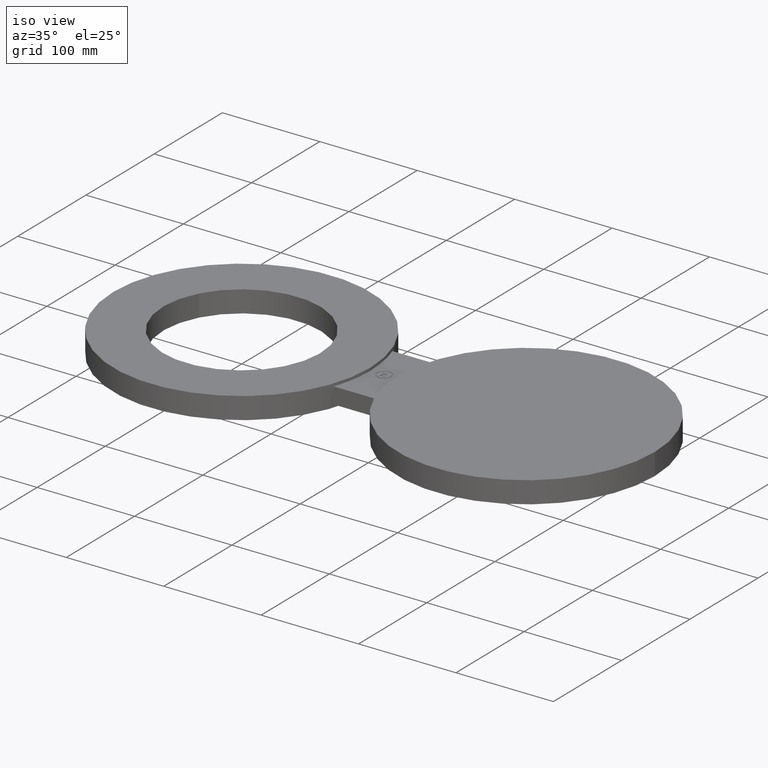
[diagram: clean part render]
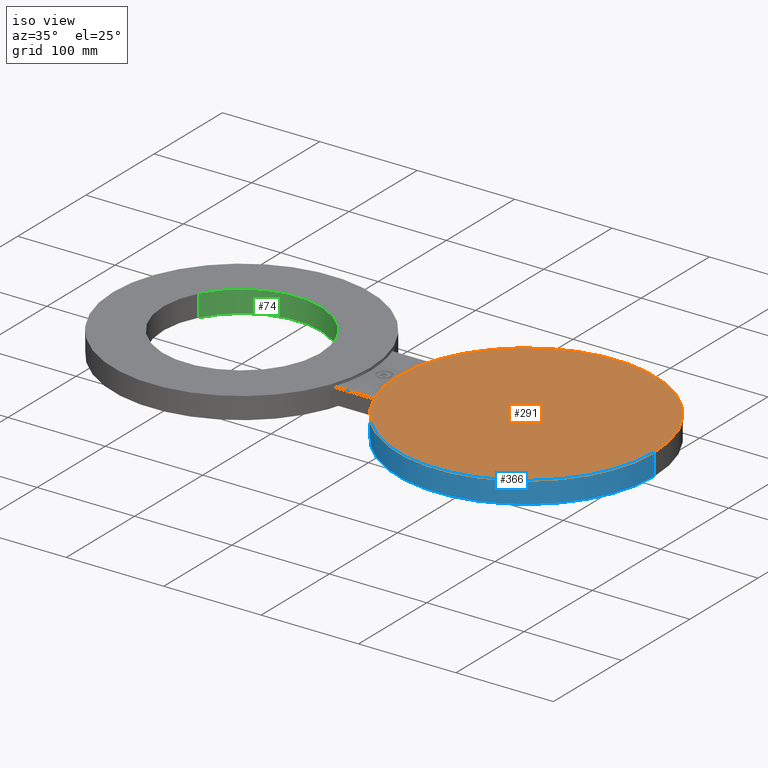
[diagram: same view with three faces highlighted in distinct colors, each labeled with its STEP entity id]
A machine part, iso view with three faces highlighted in distinct colors.
Their STEP definitions:

[orange] entity #291 — the highlighted planar face has unit normal (0, 0, 1).
#78=AXIS2_PLACEMENT_3D('Plane Axis2P3D',#75,#76,#77) ;
#275=AXIS2_PLACEMENT_3D('Circle Axis2P3D',#273,#274,$) ;
#284=AXIS2_PLACEMENT_3D('Circle Axis2P3D',#282,#283,$) ;
#75=CARTESIAN_POINT('Axis2P3D Location',(0.,0.,0.440000000002)) ;
#273=CARTESIAN_POINT('Axis2P3D Location',(11.5,1.40834381903E-015,0.440000000002)) ;
#277=CARTESIAN_POINT('Vertex',(6.31000000003,2.04393550779E-015,0.440000000002)) ;
#279=CARTESIAN_POINT('Vertex',(16.6900000001,1.37160441505E-016,0.440000000002)) ;
#282=CARTESIAN_POINT('Axis2P3D Location',(11.5,1.40834381903E-015,0.440000000002)) ;
#76=DIRECTION('Axis2P3D Direction',(0.,0.,0.0393700787402)) ;
#77=DIRECTION('Axis2P3D XDirection',(0.0393700787402,0.,0.)) ;
#274=DIRECTION('Axis2P3D Direction',(0.,0.,0.0393700787402)) ;
#283=DIRECTION('Axis2P3D Direction',(0.,0.,0.0393700787402)) ;
#288=ORIENTED_EDGE('',*,*,#281,.T.) ;
#289=ORIENTED_EDGE('',*,*,#286,.T.) ;
#291=ADVANCED_FACE('PartBody',(#290),#79,.T.) ;
#276=CIRCLE('generated circle',#275,5.19000000002) ;
#285=CIRCLE('generated circle',#284,5.19000000002) ;
#281=EDGE_CURVE('',#278,#280,#276,.T.) ;
#286=EDGE_CURVE('',#280,#278,#285,.T.) ;
#287=EDGE_LOOP('',(#288,#289)) ;
#290=FACE_OUTER_BOUND('',#287,.T.) ;
#79=PLANE('',#78) ;
#278=VERTEX_POINT('',#277) ;
#280=VERTEX_POINT('',#279) ;

[blue] entity #366 — the highlighted cylindrical surface (partial cylindrical patch) has radius 131.826 mm, axis along (0, 0, 1).
#265=AXIS2_PLACEMENT_3D('Circle Axis2P3D',#263,#264,$) ;
#275=AXIS2_PLACEMENT_3D('Circle Axis2P3D',#273,#274,$) ;
#295=AXIS2_PLACEMENT_3D('Cylinder Axis2P3D',#292,#293,#294) ;
#348=AXIS2_PLACEMENT_3D('Circle Axis2P3D',#346,#347,$) ;
#353=AXIS2_PLACEMENT_3D('Circle Axis2P3D',#351,#352,$) ;
#227=CARTESIAN_POINT('Vertex',(6.59286234147,-1.69000000001,-0.330000000001)) ;
#230=CARTESIAN_POINT('Line Origine',(6.59286234147,-1.69000000001,0.)) ;
#234=CARTESIAN_POINT('Vertex',(6.59286234147,-1.69000000001,0.330000000001)) ;
#258=CARTESIAN_POINT('Vertex',(16.6900000001,1.37160441505E-016,-0.440000000002)) ;
#260=CARTESIAN_POINT('Vertex',(6.31000000003,2.04393550779E-015,-0.440000000002)) ;
#263=CARTESIAN_POINT('Axis2P3D Location',(11.5,1.40834381903E-015,-0.440000000002)) ;
#273=CARTESIAN_POINT('Axis2P3D Location',(11.5,1.40834381903E-015,0.440000000002)) ;
#277=CARTESIAN_POINT('Vertex',(6.31000000003,2.04393550779E-015,0.440000000002)) ;
#279=CARTESIAN_POINT('Vertex',(16.6900000001,1.37160441505E-016,0.440000000002)) ;
#292=CARTESIAN_POINT('Axis2P3D Location',(11.5,1.40834381903E-015,0.)) ;
#297=CARTESIAN_POINT('Line Origine',(6.31000000003,3.31511888531E-015,0.)) ;
#301=CARTESIAN_POINT('Vertex',(6.31000000003,2.04393550779E-015,0.330000000001)) ;
#304=CARTESIAN_POINT('Line Origine',(16.6900000001,1.37160441505E-016,0.)) ;
#309=CARTESIAN_POINT('Line Origine',(6.31000000003,3.31511888531E-015,0.)) ;
#313=CARTESIAN_POINT('Vertex',(6.31000000003,2.04393550779E-015,-0.330000000001)) ;
#346=CARTESIAN_POINT('Axis2P3D Location',(11.5,1.40834381903E-015,0.330000000001)) ;
#351=CARTESIAN_POINT('Axis2P3D Location',(11.5,1.40834381903E-015,-0.330000000001)) ;
#231=DIRECTION('Vector Direction',(0.,0.,0.0393700787402)) ;
#264=DIRECTION('Axis2P3D Direction',(0.,0.,0.0393700787402)) ;
#274=DIRECTION('Axis2P3D Direction',(0.,0.,0.0393700787402)) ;
#293=DIRECTION('Axis2P3D Direction',(0.,0.,0.0393700787402)) ;
#294=DIRECTION('Axis2P3D XDirection',(-0.0393700787402,4.82144409113E-018,0.)) ;
#298=DIRECTION('Vector Direction',(0.,0.,0.0393700787402)) ;
#305=DIRECTION('Vector Direction',(0.,0.,0.0393700787402)) ;
#310=DIRECTION('Vector Direction',(0.,0.,0.0393700787402)) ;
#347=DIRECTION('Axis2P3D Direction',(0.,0.,0.0393700787402)) ;
#352=DIRECTION('Axis2P3D Direction',(0.,0.,0.0393700787402)) ;
#232=VECTOR('Line Direction',#231,0.0393700787402) ;
#299=VECTOR('Line Direction',#298,0.0393700787402) ;
#306=VECTOR('Line Direction',#305,0.0393700787402) ;
#311=VECTOR('Line Direction',#310,0.0393700787402) ;
#357=ORIENTED_EDGE('',*,*,#315,.F.) ;
#358=ORIENTED_EDGE('',*,*,#267,.T.) ;
#359=ORIENTED_EDGE('',*,*,#308,.T.) ;
#360=ORIENTED_EDGE('',*,*,#281,.F.) ;
#361=ORIENTED_EDGE('',*,*,#303,.F.) ;
#362=ORIENTED_EDGE('',*,*,#350,.T.) ;
#363=ORIENTED_EDGE('',*,*,#236,.F.) ;
#364=ORIENTED_EDGE('',*,*,#355,.F.) ;
#366=ADVANCED_FACE('PartBody',(#365),#296,.T.) ;
#266=CIRCLE('generated circle',#265,5.19000000002) ;
#276=CIRCLE('generated circle',#275,5.19000000002) ;
#349=CIRCLE('generated circle',#348,5.19000000002) ;
#354=CIRCLE('generated circle',#353,5.19000000002) ;
#296=CYLINDRICAL_SURFACE('generated cylinder',#295,5.19000000002) ;
#236=EDGE_CURVE('',#228,#235,#233,.T.) ;
#267=EDGE_CURVE('',#261,#259,#266,.T.) ;
#281=EDGE_CURVE('',#278,#280,#276,.T.) ;
#303=EDGE_CURVE('',#302,#278,#300,.T.) ;
#308=EDGE_CURVE('',#259,#280,#307,.T.) ;
#315=EDGE_CURVE('',#261,#314,#312,.T.) ;
#350=EDGE_CURVE('',#302,#235,#349,.T.) ;
#355=EDGE_CURVE('',#314,#228,#354,.T.) ;
#356=EDGE_LOOP('',(#357,#358,#359,#360,#361,#362,#363,#364)) ;
#365=FACE_OUTER_BOUND('',#356,.T.) ;
#233=LINE('Line',#230,#232) ;
#300=LINE('Line',#297,#299) ;
#307=LINE('Line',#304,#306) ;
#312=LINE('Line',#309,#311) ;
#228=VERTEX_POINT('',#227) ;
#235=VERTEX_POINT('',#234) ;
#259=VERTEX_POINT('',#258) ;
#261=VERTEX_POINT('',#260) ;
#278=VERTEX_POINT('',#277) ;
#280=VERTEX_POINT('',#279) ;
#302=VERTEX_POINT('',#301) ;
#314=VERTEX_POINT('',#313) ;

[green] entity #74 — the highlighted cylindrical surface (partial cylindrical patch) has radius 80.772 mm, axis along (0, -0, -1).
#38=AXIS2_PLACEMENT_3D('Cylinder Axis2P3D',#35,#36,#37) ;
#51=AXIS2_PLACEMENT_3D('Circle Axis2P3D',#49,#50,$) ;
#65=AXIS2_PLACEMENT_3D('Circle Axis2P3D',#63,#64,$) ;
#35=CARTESIAN_POINT('Axis2P3D Location',(8.52336574023E-017,-6.99353086378E-017,0.436062992128)) ;
#40=CARTESIAN_POINT('Line Origine',(-2.79071254682,1.52457321277,0.)) ;
#44=CARTESIAN_POINT('Vertex',(-2.79071254682,1.52457321277,-0.440000000002)) ;
#46=CARTESIAN_POINT('Vertex',(-2.79071254682,1.52457321277,0.440000000002)) ;
#49=CARTESIAN_POINT('Axis2P3D Location',(8.52336574023E-017,-6.99353086378E-017,-0.440000000002)) ;
#53=CARTESIAN_POINT('Vertex',(2.79071254682,-1.52457321277,-0.440000000002)) ;
#56=CARTESIAN_POINT('Line Origine',(2.79071254682,-1.52457321277,0.)) ;
#60=CARTESIAN_POINT('Vertex',(2.79071254682,-1.52457321277,0.440000000002)) ;
#63=CARTESIAN_POINT('Axis2P3D Location',(8.52336574023E-017,-6.99353086378E-017,0.440000000002)) ;
#36=DIRECTION('Axis2P3D Direction',(0.,-0.,-0.0393700787402)) ;
#37=DIRECTION('Axis2P3D XDirection',(0.0345504945626,-0.0188750212049,0.)) ;
#41=DIRECTION('Vector Direction',(0.,0.,-0.0393700787402)) ;
#50=DIRECTION('Axis2P3D Direction',(0.,-0.,-0.0393700787402)) ;
#57=DIRECTION('Vector Direction',(0.,0.,-0.0393700787402)) ;
#64=DIRECTION('Axis2P3D Direction',(0.,-0.,-0.0393700787402)) ;
#42=VECTOR('Line Direction',#41,0.0393700787402) ;
#58=VECTOR('Line Direction',#57,0.0393700787402) ;
#69=ORIENTED_EDGE('',*,*,#48,.F.) ;
#70=ORIENTED_EDGE('',*,*,#55,.F.) ;
#71=ORIENTED_EDGE('',*,*,#62,.T.) ;
#72=ORIENTED_EDGE('',*,*,#67,.T.) ;
#74=ADVANCED_FACE('PartBody',(#73),#39,.F.) ;
#52=CIRCLE('generated circle',#51,3.18000000001) ;
#66=CIRCLE('generated circle',#65,3.18000000001) ;
#39=CYLINDRICAL_SURFACE('generated cylinder',#38,3.18000000001) ;
#48=EDGE_CURVE('',#45,#47,#43,.F.) ;
#55=EDGE_CURVE('',#54,#45,#52,.F.) ;
#62=EDGE_CURVE('',#54,#61,#59,.F.) ;
#67=EDGE_CURVE('',#61,#47,#66,.F.) ;
#68=EDGE_LOOP('',(#69,#70,#71,#72)) ;
#73=FACE_OUTER_BOUND('',#68,.T.) ;
#43=LINE('Line',#40,#42) ;
#59=LINE('Line',#56,#58) ;
#45=VERTEX_POINT('',#44) ;
#47=VERTEX_POINT('',#46) ;
#54=VERTEX_POINT('',#53) ;
#61=VERTEX_POINT('',#60) ;